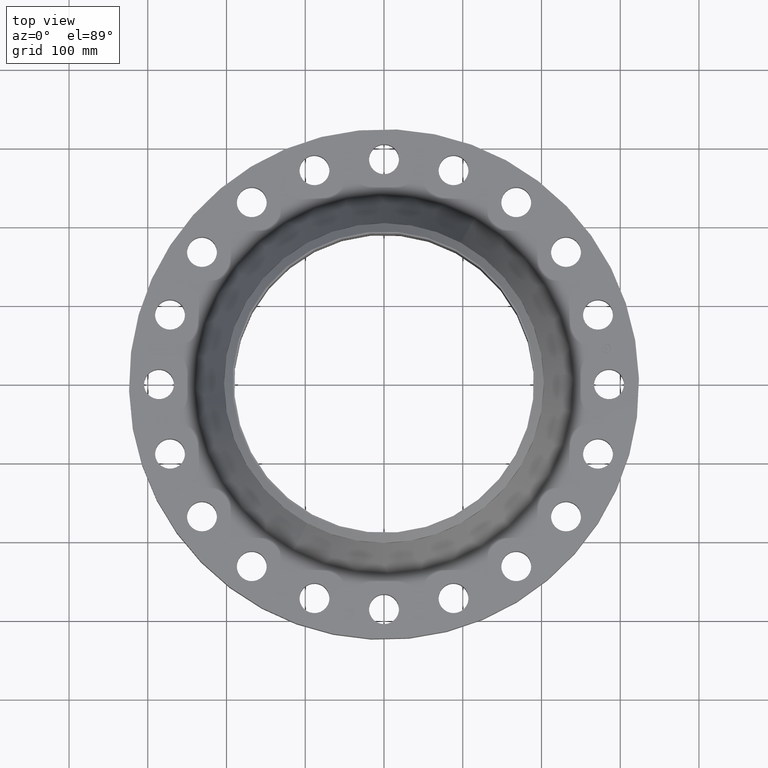
[diagram: clean part render]
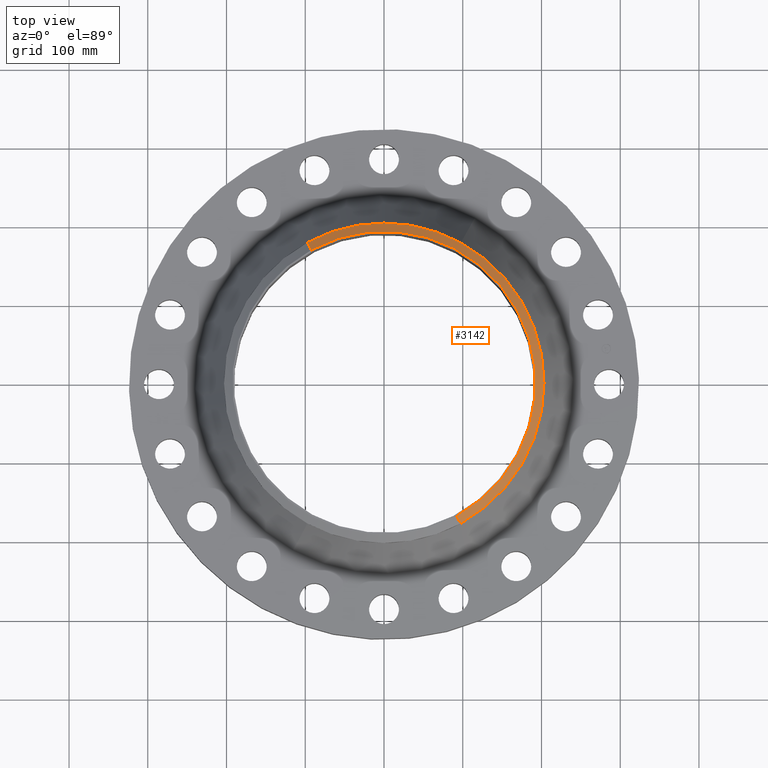
[diagram: same view with one face highlighted and labeled with its STEP entity id]
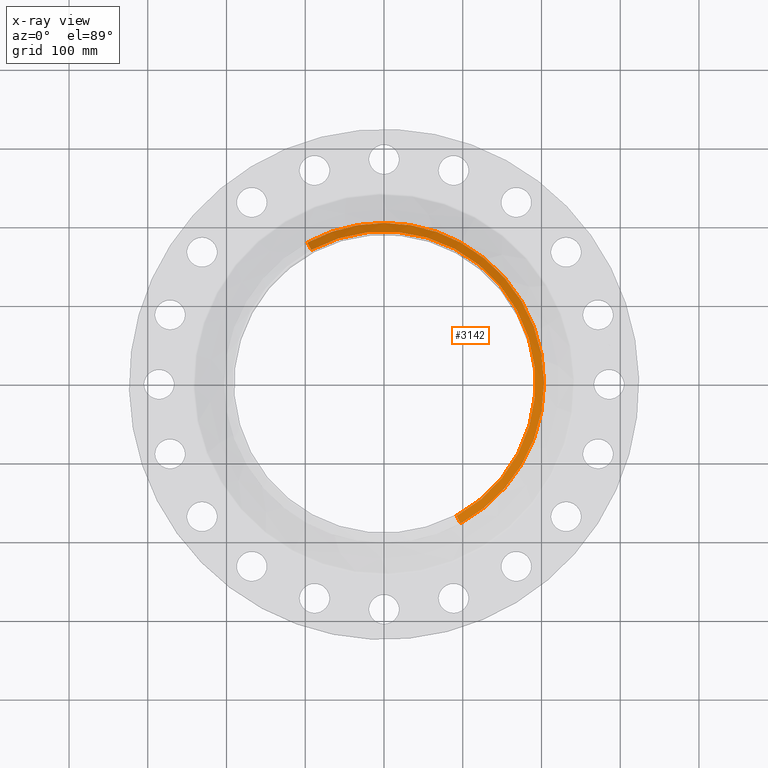
[diagram: x-ray of the same camera — body ghosted, the highlighted face saturated]
A machine part, top view. The second image highlights one B-rep face of the part: STEP entity #3142.
The next image is the same camera in x-ray: the body ghosted, the highlighted face saturated — about 0% of this face is hidden behind the body in this view.
In plain terms, the highlighted conical surface has half-angle 52.5 deg.
Its self-contained STEP definition (entity closure, byte-faithful):
#2457=AXIS2_PLACEMENT_3D('Circle Axis2P3D',#2455,#2456,$) ;
#2482=AXIS2_PLACEMENT_3D('Circle Axis2P3D',#2480,#2481,$) ;
#3072=AXIS2_PLACEMENT_3D('Circle Axis2P3D',#3070,#3071,$) ;
#3133=AXIS2_PLACEMENT_3D('Cone Axis2P3D',#3130,#3131,#3132) ;
#2438=CARTESIAN_POINT('Vertex',(3.83540430885,7.02066049515,5.67675595391)) ;
#2452=CARTESIAN_POINT('Vertex',(-3.83540430885,7.02066049515,5.67675595391)) ;
#2455=CARTESIAN_POINT('Axis2P3D Location',(0.,0.,5.67675595391)) ;
#2480=CARTESIAN_POINT('Axis2P3D Location',(0.,0.,5.67675595391)) ;
#2484=CARTESIAN_POINT('Vertex',(3.83540430885,-7.02066049515,5.67675595391)) ;
#3070=CARTESIAN_POINT('Axis2P3D Location',(3.08532202411E-011,2.8555985223E-012,6.00000000002)) ;
#3074=CARTESIAN_POINT('Vertex',(3.63344158196,-6.65097020333,6.00000000002)) ;
#3076=CARTESIAN_POINT('Vertex',(-3.63344158196,6.65097020333,6.00000000002)) ;
#3105=CARTESIAN_POINT('Line Origine',(3.7344229454,-6.83581534923,5.83837797696)) ;
#3110=CARTESIAN_POINT('Line Origine',(-3.7344229454,6.83581534923,5.83837797696)) ;
#3130=CARTESIAN_POINT('Axis2P3D Location',(0.,0.,6.00000000002)) ;
#2456=DIRECTION('Axis2P3D Direction',(-0.,0.,-0.0393700787402)) ;
#2481=DIRECTION('Axis2P3D Direction',(-0.,0.,-0.0393700787402)) ;
#3071=DIRECTION('Axis2P3D Direction',(0.,0.,-0.0393700787402)) ;
#3106=DIRECTION('Vector Direction',(0.014974561121,-0.02741075027,-0.023966985394)) ;
#3111=DIRECTION('Vector Direction',(-0.014974561121,0.02741075027,-0.023966985394)) ;
#3131=DIRECTION('Axis2P3D Direction',(-0.,-0.,-0.0393700787402)) ;
#3132=DIRECTION('Axis2P3D XDirection',(-0.0188750212049,0.0345504945626,0.)) ;
#3107=VECTOR('Line Direction',#3106,0.0393700787402) ;
#3112=VECTOR('Line Direction',#3111,0.0393700787402) ;
#3136=ORIENTED_EDGE('',*,*,#3114,.F.) ;
#3137=ORIENTED_EDGE('',*,*,#3078,.F.) ;
#3138=ORIENTED_EDGE('',*,*,#3109,.T.) ;
#3139=ORIENTED_EDGE('',*,*,#2486,.T.) ;
#3140=ORIENTED_EDGE('',*,*,#2459,.F.) ;
#3142=ADVANCED_FACE('PartBody',(#3141),#3134,.T.) ;
#2458=CIRCLE('generated circle',#2457,8.00000000003) ;
#2483=CIRCLE('generated circle',#2482,8.00000000003) ;
#3073=CIRCLE('generated circle',#3072,7.57874015749) ;
#3134=CONICAL_SURFACE('Cone',#3133,7.57874015751,0.916297857297) ;
#2459=EDGE_CURVE('',#2453,#2439,#2458,.T.) ;
#2486=EDGE_CURVE('',#2485,#2439,#2483,.F.) ;
#3078=EDGE_CURVE('',#3075,#3077,#3073,.F.) ;
#3109=EDGE_CURVE('',#3075,#2485,#3108,.T.) ;
#3114=EDGE_CURVE('',#3077,#2453,#3113,.T.) ;
#3135=EDGE_LOOP('',(#3136,#3137,#3138,#3139,#3140)) ;
#3141=FACE_OUTER_BOUND('',#3135,.T.) ;
#3108=LINE('Line',#3105,#3107) ;
#3113=LINE('Line',#3110,#3112) ;
#2439=VERTEX_POINT('',#2438) ;
#2453=VERTEX_POINT('',#2452) ;
#2485=VERTEX_POINT('',#2484) ;
#3075=VERTEX_POINT('',#3074) ;
#3077=VERTEX_POINT('',#3076) ;